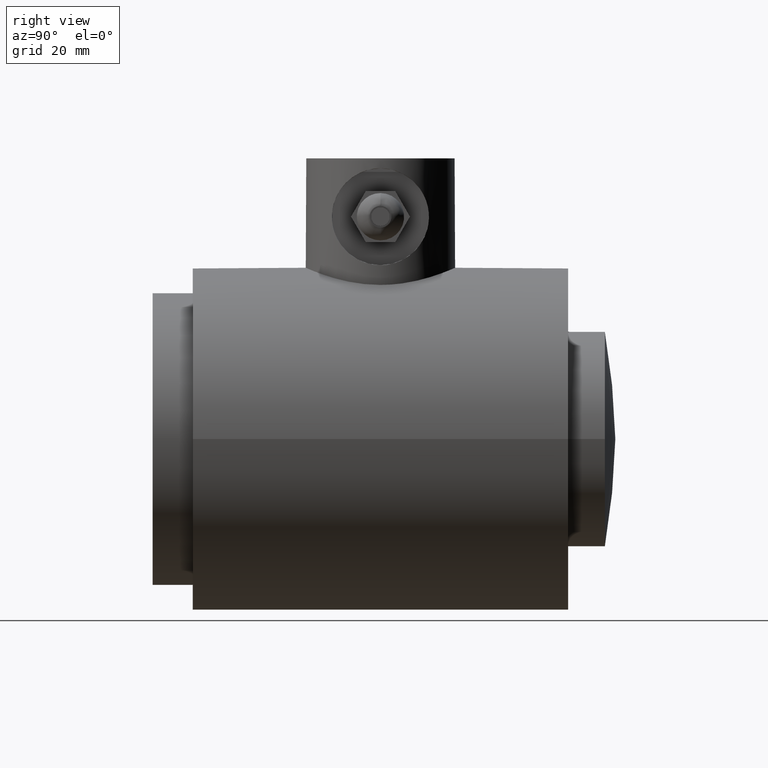
[diagram: clean part render]
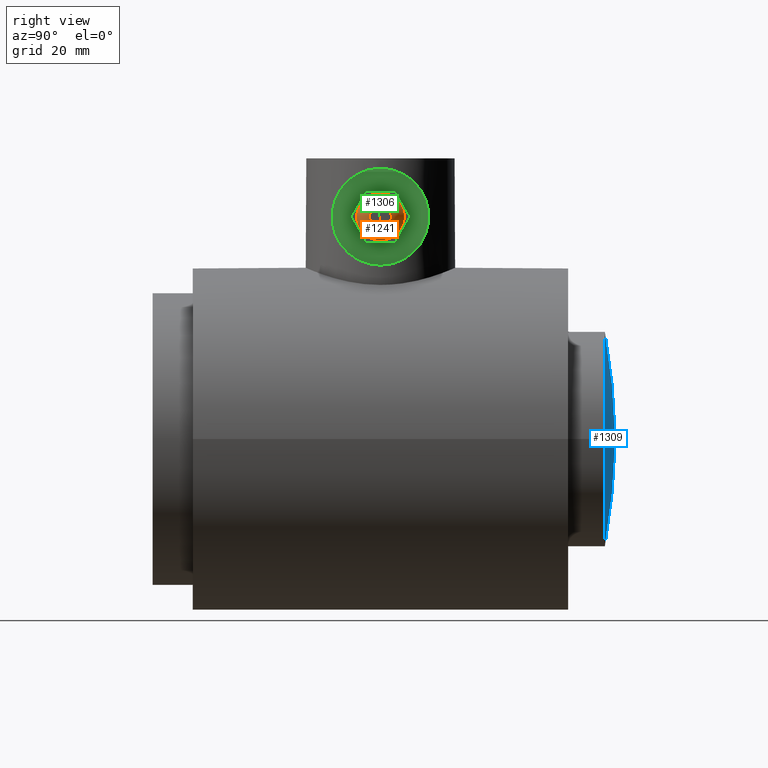
[diagram: same view with three faces highlighted in distinct colors, each labeled with its STEP entity id]
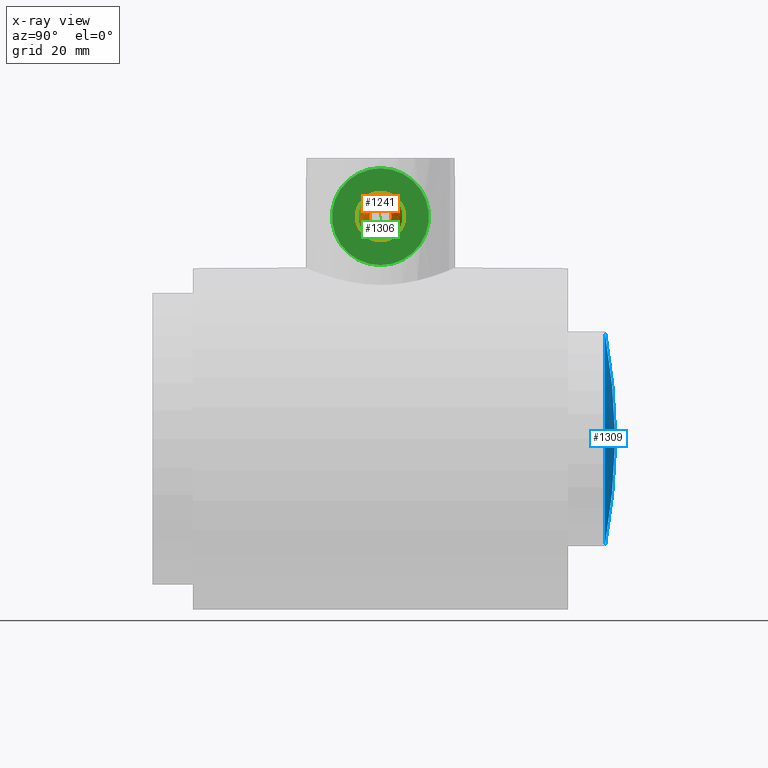
[diagram: x-ray of the same camera — body ghosted, the three highlighted faces saturated]
A machine part, right view with three faces highlighted in distinct colors.
The next image is the same camera in x-ray (body ghosted, the three faces saturated) — at least one of them is partly hidden behind the body in this view.
Their STEP definitions:

[orange] entity #1241 — the highlighted face is a freeform B-spline surface patch.
#114=(
BOUNDED_SURFACE()
B_SPLINE_SURFACE(2,2,((#1751,#1752,#1753,#1754,#1755,#1756,#1757,#1758,
#1759),(#1760,#1761,#1762,#1763,#1764,#1765,#1766,#1767,#1768),(#1769,#1770,
#1771,#1772,#1773,#1774,#1775,#1776,#1777)),.UNSPECIFIED.,.F.,.T.,.F.)
B_SPLINE_SURFACE_WITH_KNOTS((3,3),(3,2,2,2,3),(0.,1.5707963267949),(-3.14159265358979,
-1.5707963267949,0.,1.5707963267949,3.14159265358979),.UNSPECIFIED.)
GEOMETRIC_REPRESENTATION_ITEM()
RATIONAL_B_SPLINE_SURFACE(((1.,0.707106781186548,1.,0.707106781186548,1.,
0.707106781186548,1.,0.707106781186548,1.),(0.707106781186547,0.499999999999999,
0.707106781186547,0.499999999999999,0.707106781186547,0.499999999999999,
0.707106781186547,0.499999999999999,0.707106781186547),(1.,0.707106781186548,
1.,0.707106781186548,1.,0.707106781186548,1.,0.707106781186548,1.)))
REPRESENTATION_ITEM('')
SURFACE()
);
#144=FACE_OUTER_BOUND('',#223,.T.);
#223=EDGE_LOOP('',(#825,#826,#827,#828));
#481=CIRCLE('',#1340,0.118110236220472);
#482=CIRCLE('',#1341,0.137795275590551);
#483=CIRCLE('',#1342,0.255905511811024);
#509=VERTEX_POINT('',#1778);
#510=VERTEX_POINT('',#1780);
#634=EDGE_CURVE('',#509,#509,#481,.T.);
#635=EDGE_CURVE('',#509,#510,#482,.T.);
#636=EDGE_CURVE('',#510,#510,#483,.T.);
#825=ORIENTED_EDGE('',*,*,#634,.T.);
#826=ORIENTED_EDGE('',*,*,#635,.T.);
#827=ORIENTED_EDGE('',*,*,#636,.T.);
#828=ORIENTED_EDGE('',*,*,#635,.F.);
#1241=ADVANCED_FACE('',(#144),#114,.F.);
#1340=AXIS2_PLACEMENT_3D('',#1779,#1459,#1460);
#1341=AXIS2_PLACEMENT_3D('',#1781,#1461,#1462);
#1342=AXIS2_PLACEMENT_3D('',#1782,#1463,#1464);
#1459=DIRECTION('center_axis',(-1.,0.,0.));
#1460=DIRECTION('ref_axis',(0.,0.,-1.));
#1461=DIRECTION('center_axis',(0.,-1.,-1.22464679914735E-16));
#1462=DIRECTION('ref_axis',(0.,-1.22464679914735E-16,1.));
#1463=DIRECTION('center_axis',(1.,0.,0.));
#1464=DIRECTION('ref_axis',(0.,0.,-1.));
#1751=CARTESIAN_POINT('Ctrl Pts',(0.492125984251968,0.,0.255905511811024));
#1752=CARTESIAN_POINT('Ctrl Pts',(0.492125984251968,-0.255905511811024,
0.255905511811024));
#1753=CARTESIAN_POINT('Ctrl Pts',(0.492125984251968,-0.255905511811024,
0.));
#1754=CARTESIAN_POINT('Ctrl Pts',(0.492125984251968,-0.255905511811024,
-0.255905511811024));
#1755=CARTESIAN_POINT('Ctrl Pts',(0.492125984251968,0.,-0.255905511811024));
#1756=CARTESIAN_POINT('Ctrl Pts',(0.492125984251968,0.255905511811024,-0.255905511811024));
#1757=CARTESIAN_POINT('Ctrl Pts',(0.492125984251968,0.255905511811024,0.));
#1758=CARTESIAN_POINT('Ctrl Pts',(0.492125984251968,0.255905511811024,0.255905511811024));
#1759=CARTESIAN_POINT('Ctrl Pts',(0.492125984251968,0.,0.255905511811024));
#1760=CARTESIAN_POINT('Ctrl Pts',(0.62992125984252,0.,0.255905511811024));
#1761=CARTESIAN_POINT('Ctrl Pts',(0.62992125984252,-0.255905511811024,0.255905511811024));
#1762=CARTESIAN_POINT('Ctrl Pts',(0.62992125984252,-0.255905511811024,0.));
#1763=CARTESIAN_POINT('Ctrl Pts',(0.62992125984252,-0.255905511811024,-0.255905511811024));
#1764=CARTESIAN_POINT('Ctrl Pts',(0.62992125984252,0.,-0.255905511811024));
#1765=CARTESIAN_POINT('Ctrl Pts',(0.62992125984252,0.255905511811024,-0.255905511811024));
#1766=CARTESIAN_POINT('Ctrl Pts',(0.62992125984252,0.255905511811024,0.));
#1767=CARTESIAN_POINT('Ctrl Pts',(0.62992125984252,0.255905511811024,0.255905511811024));
#1768=CARTESIAN_POINT('Ctrl Pts',(0.62992125984252,0.,0.255905511811024));
#1769=CARTESIAN_POINT('Ctrl Pts',(0.62992125984252,0.,0.118110236220472));
#1770=CARTESIAN_POINT('Ctrl Pts',(0.62992125984252,-0.118110236220472,0.118110236220472));
#1771=CARTESIAN_POINT('Ctrl Pts',(0.62992125984252,-0.118110236220472,0.));
#1772=CARTESIAN_POINT('Ctrl Pts',(0.62992125984252,-0.118110236220472,-0.118110236220472));
#1773=CARTESIAN_POINT('Ctrl Pts',(0.62992125984252,0.,-0.118110236220472));
#1774=CARTESIAN_POINT('Ctrl Pts',(0.62992125984252,0.118110236220472,-0.118110236220472));
#1775=CARTESIAN_POINT('Ctrl Pts',(0.62992125984252,0.118110236220472,0.));
#1776=CARTESIAN_POINT('Ctrl Pts',(0.62992125984252,0.118110236220472,0.118110236220472));
#1777=CARTESIAN_POINT('Ctrl Pts',(0.62992125984252,0.,0.118110236220472));
#1778=CARTESIAN_POINT('',(0.62992125984252,1.44643322733939E-17,0.118110236220472));
#1779=CARTESIAN_POINT('Origin',(0.62992125984252,0.,0.));
#1780=CARTESIAN_POINT('',(0.492125984251968,-3.13393865923535E-17,0.255905511811024));
#1781=CARTESIAN_POINT('Origin',(0.492125984251968,-1.44643322733939E-17,
0.118110236220472));
#1782=CARTESIAN_POINT('Origin',(0.492125984251968,0.,0.));

[blue] entity #1309 — the highlighted spherical surface has radius 152.4 mm.
#15=SPHERICAL_SURFACE('',#1423,6.);
#212=FACE_OUTER_BOUND('',#298,.T.);
#298=EDGE_LOOP('',(#1165));
#499=CIRCLE('',#1424,1.16);
#622=VERTEX_POINT('',#5866);
#806=EDGE_CURVE('',#622,#622,#499,.T.);
#1165=ORIENTED_EDGE('',*,*,#806,.F.);
#1309=ADVANCED_FACE('',(#212),#15,.T.);
#1423=AXIS2_PLACEMENT_3D('',#5865,#1704,#1705);
#1424=AXIS2_PLACEMENT_3D('',#5867,#1706,#1707);
#1704=DIRECTION('center_axis',(6.12323399573677E-17,0.,1.));
#1705=DIRECTION('ref_axis',(1.,0.,0.));
#1706=DIRECTION('center_axis',(0.,-1.,0.));
#1707=DIRECTION('ref_axis',(-1.,0.,0.));
#5865=CARTESIAN_POINT('Origin',(0.,-1.00181102362205,0.));
#5866=CARTESIAN_POINT('',(1.16,4.8849877668922,0.));
#5867=CARTESIAN_POINT('Origin',(0.,4.8849877668922,0.));

[green] entity #1306 — the highlighted planar face has unit normal (1, 0, 0).
#108=FACE_BOUND('',#294,.T.);
#135=PLANE('',#1419);
#209=FACE_OUTER_BOUND('',#293,.T.);
#293=EDGE_LOOP('',(#1154));
#294=EDGE_LOOP('',(#1155,#1156));
#495=CIRCLE('',#1415,0.196850393700787);
#496=CIRCLE('',#1416,0.196850393700787);
#497=CIRCLE('',#1418,0.523622047244094);
#614=VERTEX_POINT('',#5725);
#615=VERTEX_POINT('',#5726);
#618=VERTEX_POINT('',#5759);
#795=EDGE_CURVE('',#614,#615,#495,.T.);
#796=EDGE_CURVE('',#615,#614,#496,.T.);
#800=EDGE_CURVE('',#618,#618,#497,.T.);
#1154=ORIENTED_EDGE('',*,*,#800,.F.);
#1155=ORIENTED_EDGE('',*,*,#795,.T.);
#1156=ORIENTED_EDGE('',*,*,#796,.T.);
#1306=ADVANCED_FACE('',(#209,#108),#135,.T.);
#1415=AXIS2_PLACEMENT_3D('',#5727,#1685,#1686);
#1416=AXIS2_PLACEMENT_3D('',#5728,#1687,#1688);
#1418=AXIS2_PLACEMENT_3D('',#5761,#1693,#1694);
#1419=AXIS2_PLACEMENT_3D('',#5789,#1695,#1696);
#1685=DIRECTION('center_axis',(-1.,0.,0.));
#1686=DIRECTION('ref_axis',(0.,1.,0.));
#1687=DIRECTION('center_axis',(-1.,0.,0.));
#1688=DIRECTION('ref_axis',(0.,1.,0.));
#1693=DIRECTION('center_axis',(-1.,0.,0.));
#1694=DIRECTION('ref_axis',(0.,0.,-1.));
#1695=DIRECTION('center_axis',(1.,0.,0.));
#1696=DIRECTION('ref_axis',(0.,0.,-1.));
#5725=CARTESIAN_POINT('',(0.610236220472441,2.65748031496063,2.40157480314961));
#5726=CARTESIAN_POINT('',(0.610236220472441,2.26377952755906,2.40157480314961));
#5727=CARTESIAN_POINT('Origin',(0.610236220472441,2.46062992125984,2.40157480314961));
#5728=CARTESIAN_POINT('Origin',(0.610236220472441,2.46062992125984,2.40157480314961));
#5759=CARTESIAN_POINT('',(0.610236220472441,2.46062992125984,2.9251968503937));
#5761=CARTESIAN_POINT('Origin',(0.610236220472441,2.46062992125984,2.40157480314961));
#5789=CARTESIAN_POINT('Origin',(0.610236220472441,2.46062992125984,2.40157480314961));